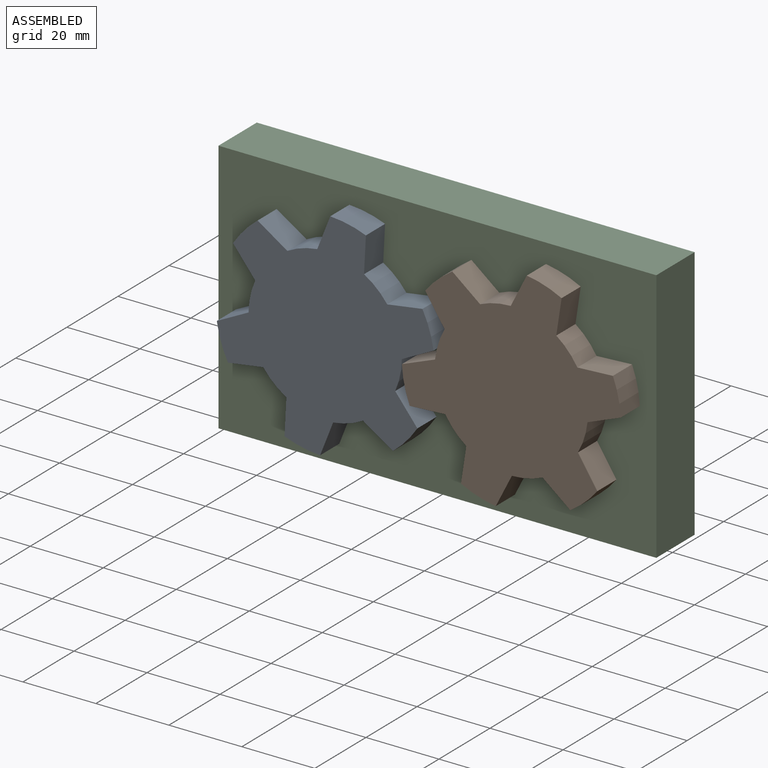
[diagram: assembled view]
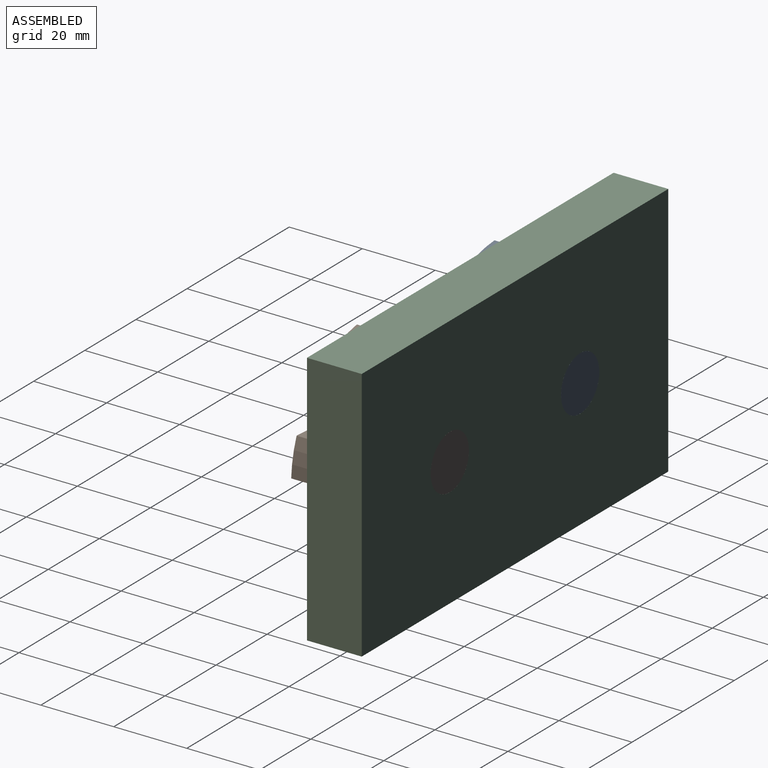
[diagram: assembled view, second angle]
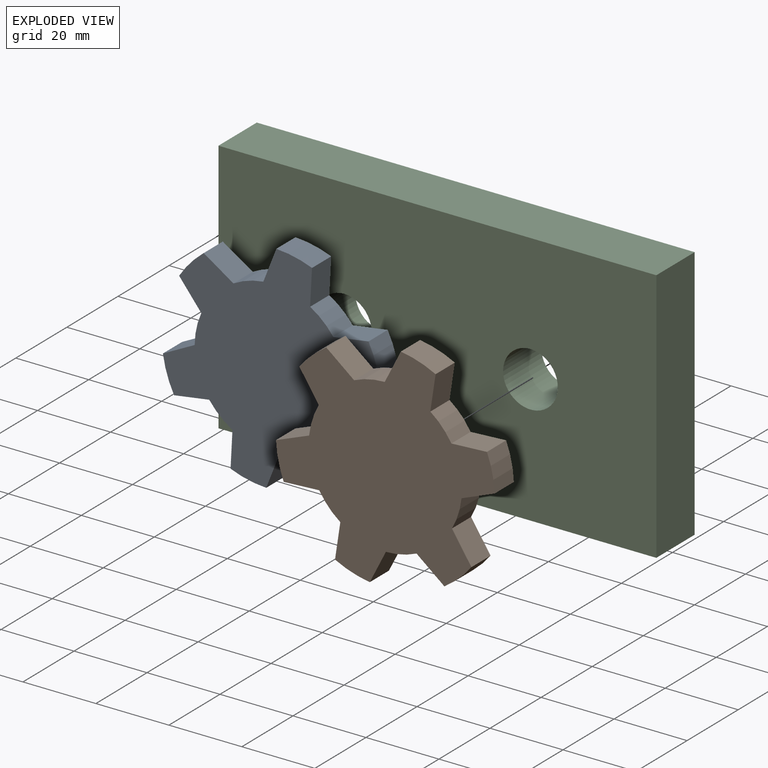
[diagram: exploded view]
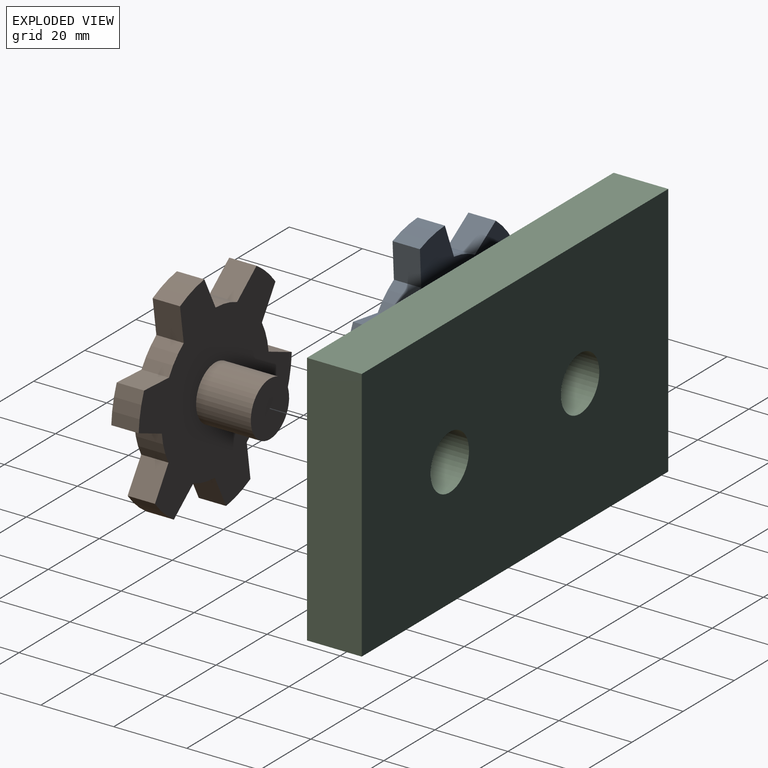
[diagram: exploded view, second angle]
ASSEMBLY  parts=3 mates=2
PART A: 28 faces, bbox 56.2x22.5x60 mm
  f0: cylinder r=21mm len=8.59mm, axis (0,1,0), area 64.9mm2, adj f9,f10,f22,f24
  f1: cylinder r=21mm len=7.5mm, axis (0,1,0), area 64.9mm2, adj f9,f10,f13,f25
  f2: cylinder r=21mm len=7.5mm, axis (0,1,0), area 64.9mm2, adj f9,f10,f12,f16
  f3: cylinder r=21mm len=8.59mm, axis (0,1,0), area 64.9mm2, adj f9,f10,f15,f19
  f4: cylinder r=21mm len=7.5mm, axis (0,1,0), area 64.9mm2, adj f6,f9,f10,f18
  f5: cylinder r=30mm len=10mm, axis (0,1,0), area 75.4mm2, adj f6,f8,f9,f10
  f6: plane 9.63x7.5mm, normal (-0.99,0,0.16), area 73.2mm2, adj f4,f5,f9,f10
  f7: cylinder r=21mm len=7.5mm, axis (0,1,0), area 64.9mm2, adj f8,f9,f10,f21
  f8: plane 9.63x7.5mm, normal (0.99,0,0.16), area 73.2mm2, adj f5,f7,f9,f10
  f9: plane 60x56.23mm, normal (0,-1,0), area 2014.7mm2, adj f0,f1,f2,f3,f4,f5,f6,f7
  f10: plane 60x56.23mm, normal (0,1,0), area 1838mm2, adj f0,f1,f2,f3,f4,f5,f6,f7
  f11: cylinder r=30mm len=10mm, axis (0,1,0), area 75.4mm2, adj f9,f10,f12,f13
  f12: plane 9.63x7.5mm, normal (-0.99,0,-0.16), area 73.2mm2, adj f2,f9,f10,f11
  f13: plane 9.63x7.5mm, normal (0.99,0,-0.16), area 73.2mm2, adj f1,f9,f10,f11
  f14: cylinder r=30mm len=8.66mm, axis (0,1,0), area 75.4mm2, adj f9,f10,f15,f16
  f15: plane 7.56x7.5mm, normal (-0.63,0,0.78), area 73.2mm2, adj f3,f9,f10,f14
  f16: plane 9.12x7.5mm, normal (0.36,0,-0.93), area 73.2mm2, adj f2,f9,f10,f14
  f17: cylinder r=30mm len=8.66mm, axis (0,1,0), area 75.4mm2, adj f9,f10,f18,f19
  f18: plane 9.12x7.5mm, normal (0.36,0,0.93), area 73.2mm2, adj f4,f9,f10,f17
  f19: plane 7.56x7.5mm, normal (-0.63,0,-0.78), area 73.2mm2, adj f3,f9,f10,f17
  f20: cylinder r=30mm len=8.66mm, axis (0,1,0), area 75.4mm2, adj f9,f10,f21,f22
  f21: plane 9.12x7.5mm, normal (-0.36,0,0.93), area 73.2mm2, adj f7,f9,f10,f20
  f22: plane 7.56x7.5mm, normal (0.63,0,-0.78), area 73.2mm2, adj f0,f9,f10,f20
  f23: cylinder r=30mm len=8.66mm, axis (0,1,0), area 75.4mm2, adj f9,f10,f24,f25
  f24: plane 7.56x7.5mm, normal (0.63,0,0.78), area 73.2mm2, adj f0,f9,f10,f23
  f25: plane 9.12x7.5mm, normal (-0.36,0,-0.93), area 73.2mm2, adj f1,f9,f10,f23
  f26: cylinder r=7.5mm len=15mm, axis (0,-1,0), area 706.9mm2, adj f10,f27
  f27: plane 15x15mm, normal (0,1,0), area 176.7mm2, adj f26
PART B: 28 faces, bbox 60x22.5x56.2 mm
  f0: cylinder r=21mm len=7.5mm, axis (0,1,0), area 64.9mm2, adj f9,f10,f22,f24
  f1: cylinder r=21mm len=7.5mm, axis (0,1,0), area 64.9mm2, adj f9,f10,f13,f25
  f2: cylinder r=21mm len=8.59mm, axis (0,1,0), area 64.9mm2, adj f9,f10,f12,f16
  f3: cylinder r=21mm len=7.5mm, axis (0,1,0), area 64.9mm2, adj f9,f10,f15,f19
  f4: cylinder r=21mm len=7.5mm, axis (0,1,0), area 64.9mm2, adj f6,f9,f10,f18
  f5: cylinder r=30mm len=8.66mm, axis (0,1,0), area 75.4mm2, adj f6,f8,f9,f10
  f6: plane 9.12x7.5mm, normal (-0.93,0,-0.36), area 73.2mm2, adj f4,f5,f9,f10
  f7: cylinder r=21mm len=8.59mm, axis (0,1,0), area 64.9mm2, adj f8,f9,f10,f21
  f8: plane 7.56x7.5mm, normal (0.78,0,0.63), area 73.2mm2, adj f5,f7,f9,f10
  f9: plane 60x56.23mm, normal (0,-1,0), area 2014.7mm2, adj f0,f1,f2,f3,f4,f5,f6,f7
  f10: plane 60x56.23mm, normal (0,1,0), area 1838mm2, adj f0,f1,f2,f3,f4,f5,f6,f7
  f11: cylinder r=30mm len=8.66mm, axis (0,1,0), area 75.4mm2, adj f9,f10,f12,f13
  f12: plane 7.56x7.5mm, normal (-0.78,0,-0.63), area 73.2mm2, adj f2,f9,f10,f11
  f13: plane 9.12x7.5mm, normal (0.93,0,0.36), area 73.2mm2, adj f1,f9,f10,f11
  f14: cylinder r=30mm len=8.66mm, axis (0,1,0), area 75.4mm2, adj f9,f10,f15,f16
  f15: plane 9.12x7.5mm, normal (-0.93,0,0.36), area 73.2mm2, adj f3,f9,f10,f14
  f16: plane 7.56x7.5mm, normal (0.78,0,-0.63), area 73.2mm2, adj f2,f9,f10,f14
  f17: cylinder r=30mm len=10mm, axis (0,1,0), area 75.4mm2, adj f9,f10,f18,f19
  f18: plane 9.63x7.5mm, normal (-0.16,0,0.99), area 73.2mm2, adj f4,f9,f10,f17
  f19: plane 9.63x7.5mm, normal (-0.16,0,-0.99), area 73.2mm2, adj f3,f9,f10,f17
  f20: cylinder r=30mm len=8.66mm, axis (0,1,0), area 75.4mm2, adj f9,f10,f21,f22
  f21: plane 7.56x7.5mm, normal (-0.78,0,0.63), area 73.2mm2, adj f7,f9,f10,f20
  f22: plane 9.12x7.5mm, normal (0.93,0,-0.36), area 73.2mm2, adj f0,f9,f10,f20
  f23: cylinder r=30mm len=10mm, axis (0,1,0), area 75.4mm2, adj f9,f10,f24,f25
  f24: plane 9.63x7.5mm, normal (0.16,0,0.99), area 73.2mm2, adj f0,f9,f10,f23
  f25: plane 9.63x7.5mm, normal (0.16,0,-0.99), area 73.2mm2, adj f1,f9,f10,f23
  f26: cylinder r=7.5mm len=15mm, axis (0,-1,0), area 706.9mm2, adj f10,f27
  f27: plane 15x15mm, normal (0,1,0), area 176.7mm2, adj f26
PART C: 8 faces, bbox 120x15x70 mm
  f0: plane 120x15mm, normal (0,0,-1), area 1800mm2, adj f1,f3,f4,f5
  f1: plane 70x15mm, normal (1,0,0), area 1050mm2, adj f0,f2,f4,f5
  f2: plane 120x15mm, normal (0,0,1), area 1800mm2, adj f1,f3,f4,f5
  f3: plane 70x15mm, normal (-1,0,0), area 1050mm2, adj f0,f2,f4,f5
  f4: plane 120x70mm, normal (0,1,0), area 8046.6mm2, adj f0,f1,f2,f3,f6,f7
  f5: plane 120x70mm, normal (0,-1,0), area 8046.6mm2, adj f0,f1,f2,f3,f6,f7
  f6: cylinder r=7.5mm len=15mm, axis (0,-1,0), area 706.9mm2, adj f4,f5
  f7: cylinder r=7.5mm len=15mm, axis (0,-1,0), area 706.9mm2, adj f4,f5
PLACE A rot(axis=(0,-1,0),47.8deg) t=(-64.21,-28.17,-2.39)mm
PLACE B rot(axis=(0,1,0),47.8deg) t=(-47.5,-28.17,35.37)mm
PLACE C t=(-64.21,-28.17,-2.39)mm fixed
MATE revolute C.f6 <-> A.f26  axis (0,1,0) through (-64.21,-13.17,-2.39)mm
MATE revolute C.f7 <-> B.f26  axis (0,1,0) through (-13.21,-13.17,-2.39)mm
